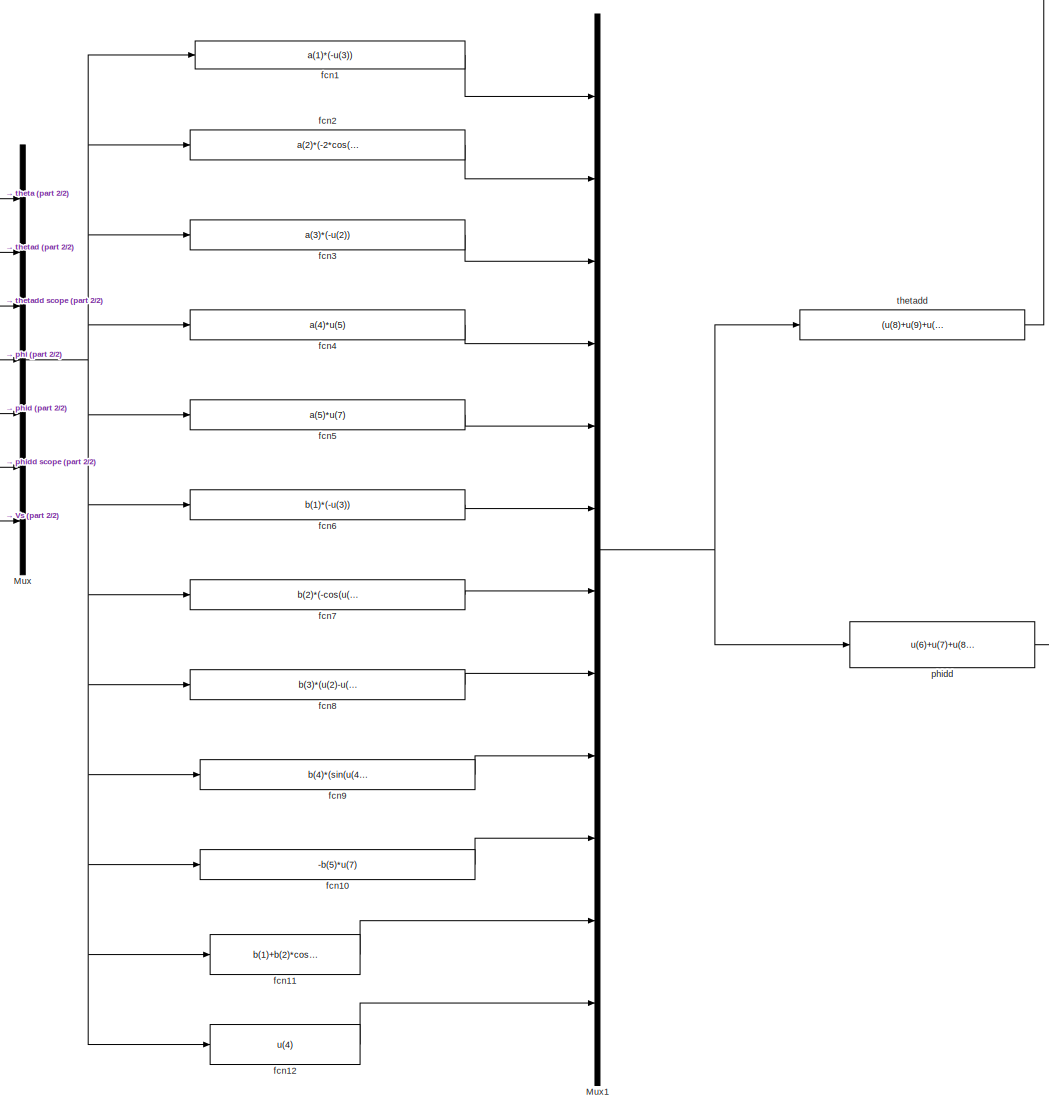
[diagram: root canvas - part 1/2, center side, full height]
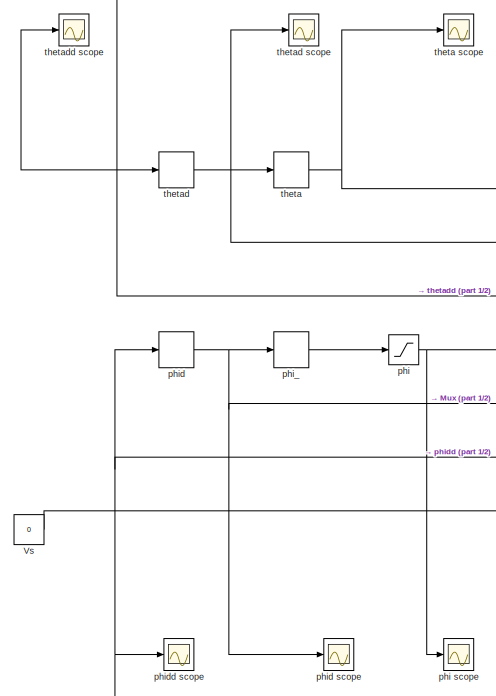
[diagram: root canvas - part 2/2, top left region]
MODEL slx_1b6f65916e3d
KIND model
CONFIG AbsTol = auto
CONFIG EnableMultiTasking = off
CONFIG FixedStep = auto
CONFIG MaxStep = auto
CONFIG MinStep = auto
CONFIG RelTol = 1e-3
CONFIG SampleTimeConstraint = Unconstrained
CONFIG Solver = VariableStepAuto
CONFIG SolverName = VariableStepAuto
CONFIG StartTime = 0.0
CONFIG StopTime = 10.0
BLOCK [Mux] Mux
  DisplayOption = bar
  Inputs = 7
  Ports = [7, 1]
BLOCK [Mux] Mux1
  DisplayOption = bar
  Inputs = 12
  Ports = [12, 1]
BLOCK [Constant] Vs
  Value = 0
BLOCK [Fcn] fcn1
  Expr = a(1)*(-u(3))
BLOCK [Fcn] fcn10
  Expr = -b(5)*u(7)
BLOCK [Fcn] fcn11 
  Expr = b(1)+b(2)*cos(u(4))
BLOCK [Fcn] fcn12
  Expr = u(4)
BLOCK [Fcn] fcn2
  Expr = a(2)*(-2*cos(u(4))*u(6)+sin(2*u(4))*sec(u(4))*u(5)*u(5))
BLOCK [Fcn] fcn3
  Expr = a(3)*(-u(2))
BLOCK [Fcn] fcn4
  Expr = a(4)*u(5)
BLOCK [Fcn] fcn5
  Expr = a(5)*u(7)
BLOCK [Fcn] fcn6
  Expr = b(1)*(-u(3))
BLOCK [Fcn] fcn7
  Expr = b(2)*(-cos(u(4))*u(3))
BLOCK [Fcn] fcn8
  Expr = b(3)*(u(2)-u(5))
BLOCK [Fcn] fcn9
  Expr = b(4)*(sin(u(4)))
BLOCK [Saturate] phi
  InputPortMap = u0
  LowerLimit = -1.6
  Ports = [1, 1]
  UpperLimit = 1.6
BLOCK [Scope] phi scope 
  Floating = off
  NumInputPorts = 1
  Ports = [1]
  ScopeSpecificationString = Simulink.scopes.TimeScopeBlockCfg('CurrentConfiguration', extmgr.ConfigurationSet(extmgr.Configuration('Core','General UI',true),extmgr.Configuration('Core','Source UI',true),extmgr.Configuration('Sources','WiredSimulink',true),extmgr.Configuration('Visuals','Time Domain',true,'SerializedDisplays',{struct('MinYLimReal','-0.18037','MaxYLimReal','1.79782','YLabelReal','','MinYLimMag','0.00000','MaxY...<+1352ch>
BLOCK [DiscreteIntegrator] phi_
  ICPrevOutput = DiscIntNeverNeededParam
  ICPrevScaledInput = DiscIntNeverNeededParam
  InitialCondition = pi/180
  InitialConditionSetting = Auto
  Ports = [1, 1]
  SampleTime = 0.001
BLOCK [DiscreteIntegrator] phid
  ICPrevOutput = DiscIntNeverNeededParam
  ICPrevScaledInput = DiscIntNeverNeededParam
  InitialConditionSetting = Auto
  Ports = [1, 1]
  SampleTime = 0.001
BLOCK [Scope] phid scope 
  Floating = off
  NumInputPorts = 1
  Ports = [1]
  ScopeSpecificationString = Simulink.scopes.TimeScopeBlockCfg('CurrentConfiguration', extmgr.ConfigurationSet(extmgr.Configuration('Core','General UI',true),extmgr.Configuration('Core','Source UI',true),extmgr.Configuration('Sources','WiredSimulink',true,'DataLoggingVariableName','ScopeData3'),extmgr.Configuration('Visuals','Time Domain',true,'SerializedDisplays',{struct('MinYLimReal','-0.18037','MaxYLimReal','1.79782','YLab...<+1391ch>
BLOCK [Fcn] phidd
  Expr = u(6)+u(7)+u(8)+u(9)+u(10)
BLOCK [Scope] phidd scope 
  Floating = off
  NumInputPorts = 1
  Ports = [1]
  ScopeSpecificationString = Simulink.scopes.TimeScopeBlockCfg('CurrentConfiguration', extmgr.ConfigurationSet(extmgr.Configuration('Core','General UI',true),extmgr.Configuration('Core','Source UI',true),extmgr.Configuration('Sources','WiredSimulink',true,'DataLoggingVariableName','ScopeData4'),extmgr.Configuration('Visuals','Time Domain',true,'SerializedDisplays',{struct('MinYLimReal','-0.18037','MaxYLimReal','1.79782','YLab...<+1391ch>
BLOCK [DiscreteIntegrator] theta
  ICPrevOutput = DiscIntNeverNeededParam
  ICPrevScaledInput = DiscIntNeverNeededParam
  InitialConditionSetting = Auto
  Ports = [1, 1]
  SampleTime = 0.001
BLOCK [Scope] theta scope
  Floating = off
  NumInputPorts = 1
  Ports = [1]
  ScopeSpecificationString = Simulink.scopes.TimeScopeBlockCfg('CurrentConfiguration', extmgr.ConfigurationSet(extmgr.Configuration('Core','General UI',true),extmgr.Configuration('Core','Source UI',true),extmgr.Configuration('Sources','WiredSimulink',true,'DataLoggingVariableName','ScopeData1'),extmgr.Configuration('Visuals','Time Domain',true,'SerializedDisplays',{struct('MinYLimReal','-84.02128','MaxYLimReal','14.63071','YL...<+1399ch>
BLOCK [DiscreteIntegrator] thetad
  ICPrevOutput = DiscIntNeverNeededParam
  ICPrevScaledInput = DiscIntNeverNeededParam
  InitialConditionSetting = Auto
  Ports = [1, 1]
  SampleTime = 0.001
BLOCK [Scope] thetad scope 
  Floating = off
  NumInputPorts = 1
  Ports = [1]
  ScopeSpecificationString = Simulink.scopes.TimeScopeBlockCfg('CurrentConfiguration', extmgr.ConfigurationSet(extmgr.Configuration('Core','General UI',true),extmgr.Configuration('Core','Source UI',true),extmgr.Configuration('Sources','WiredSimulink',true,'DataLoggingVariableName','ScopeData1'),extmgr.Configuration('Visuals','Time Domain',true,'SerializedDisplays',{struct('MinYLimReal','-0.18037','MaxYLimReal','1.79782','YLab...<+1391ch>
BLOCK [Fcn] thetadd
  Expr = (u(8)+u(9)+u(10)-u(12))/u(11)
BLOCK [Scope] thetadd scope 
  Floating = off
  NumInputPorts = 1
  Ports = [1]
  ScopeSpecificationString = Simulink.scopes.TimeScopeBlockCfg('CurrentConfiguration', extmgr.ConfigurationSet(extmgr.Configuration('Core','General UI',true),extmgr.Configuration('Core','Source UI',true),extmgr.Configuration('Sources','WiredSimulink',true,'DataLoggingVariableName','ScopeData2'),extmgr.Configuration('Visuals','Time Domain',true,'SerializedDisplays',{struct('MinYLimReal','-0.18037','MaxYLimReal','1.79782','YLab...<+1391ch>
NET Mux1:1 -> phidd:1, thetadd:1
NET Mux:1 -> fcn10:1, fcn11 :1, fcn12:1, fcn1:1, fcn2:1, fcn3:1, fcn4:1, fcn5:1, fcn6:1, fcn7:1, fcn8:1, fcn9:1
LINE Vs:1 -> Mux:7
LINE fcn10:1 -> Mux1:10
LINE fcn11 :1 -> Mux1:11
LINE fcn12:1 -> Mux1:12
LINE fcn1:1 -> Mux1:1
LINE fcn2:1 -> Mux1:2
LINE fcn3:1 -> Mux1:3
LINE fcn4:1 -> Mux1:4
LINE fcn5:1 -> Mux1:5
LINE fcn6:1 -> Mux1:6
LINE fcn7:1 -> Mux1:7
LINE fcn8:1 -> Mux1:8
LINE fcn9:1 -> Mux1:9
NET phi:1 -> Mux:4, phi scope :1
LINE phi_:1 -> phi:1
NET phid:1 -> Mux:5, phi_:1, phid scope :1
NET phidd:1 -> Mux:6, phid:1, phidd scope :1
NET theta:1 -> Mux:1, theta scope:1
NET thetad:1 -> Mux:2, theta:1, thetad scope :1
NET thetadd:1 -> Mux:3, thetad:1, thetadd scope :1
note: NET lines group one-source signal fan-out (src -> all destinations, sorted); 1:1 wires keep LINE
